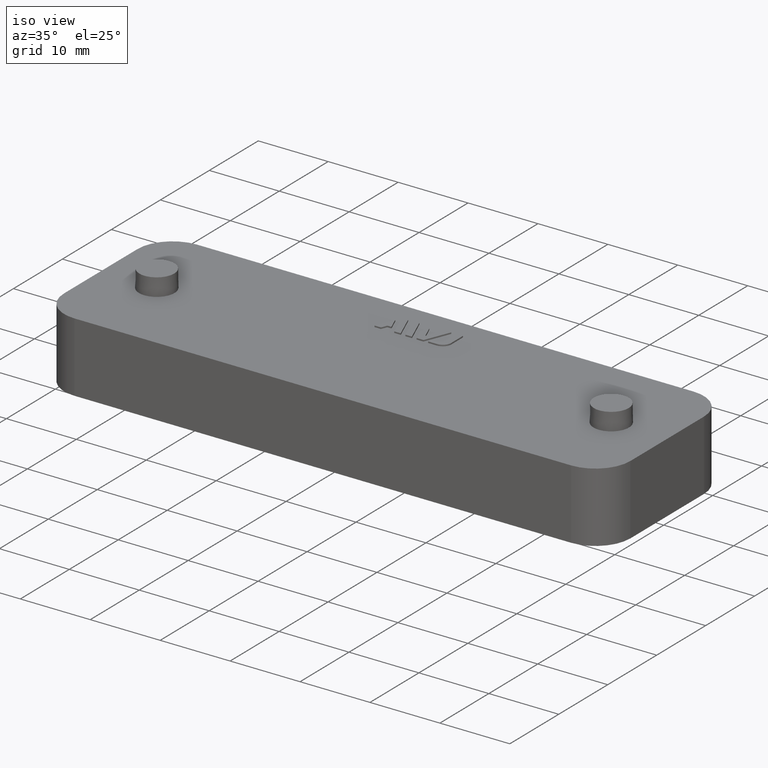
[diagram: clean part render]
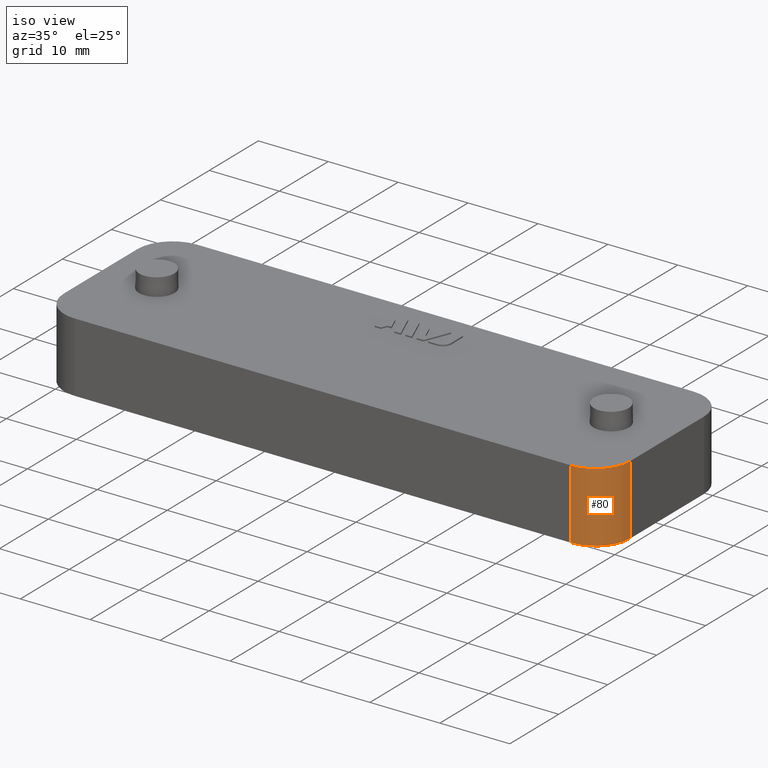
[diagram: same view with one face highlighted and labeled with its STEP entity id]
A machine part, iso view. The second image highlights one B-rep face of the part: STEP entity #80.
In plain terms, the highlighted cylindrical surface (partial cylindrical patch) has radius 5 mm, axis along (-0, 0, 1).
Its self-contained STEP definition (entity closure, byte-faithful):
#80 = ADVANCED_FACE( '', ( #527 ), #528, .T. );
#527 = FACE_OUTER_BOUND( '', #1463, .T. );
#528 = CYLINDRICAL_SURFACE( '', #1464, 5.00000000000000 );
#1463 = EDGE_LOOP( '', ( #2451, #2452, #2453, #2454 ) );
#1464 = AXIS2_PLACEMENT_3D( '', #2455, #2456, #2457 );
#2451 = ORIENTED_EDGE( '', *, *, #5925, .F. );
#2452 = ORIENTED_EDGE( '', *, *, #5924, .F. );
#2453 = ORIENTED_EDGE( '', *, *, #5893, .T. );
#2454 = ORIENTED_EDGE( '', *, *, #5914, .T. );
#2455 = CARTESIAN_POINT( '', ( 35.5000000000000, -7.49999999999989, 88.7139788967795 ) );
#2456 = DIRECTION( '', ( -1.60751816480227E-016, 1.81794180051289E-016, 1.00000000000000 ) );
#2457 = DIRECTION( '', ( 1.00000000000000, -2.77555756156289E-015, 1.60751816480227E-016 ) );
#5893 = EDGE_CURVE( '', #7007, #7005, #7008, .T. );
#5914 = EDGE_CURVE( '', #7005, #7048, #7049, .T. );
#5924 = EDGE_CURVE( '', #7007, #7062, #7065, .T. );
#5925 = EDGE_CURVE( '', #7062, #7048, #7066, .T. );
#7005 = VERTEX_POINT( '', #8846 );
#7007 = VERTEX_POINT( '', #8849 );
#7008 = CIRCLE( '', #8850, 5.00000000000000 );
#7048 = VERTEX_POINT( '', #8906 );
#7049 = LINE( '', #8907, #8908 );
#7062 = VERTEX_POINT( '', #8928 );
#7065 = LINE( '', #8933, #8934 );
#7066 = CIRCLE( '', #8935, 5.00000000000000 );
#8846 = CARTESIAN_POINT( '', ( 35.5000000000000, -12.5000000000000, 9.99999999999998 ) );
#8849 = CARTESIAN_POINT( '', ( 40.5000000000000, -7.49999999999992, 9.99999999999998 ) );
#8850 = AXIS2_PLACEMENT_3D( '', #11731, #11732, #11733 );
#8906 = CARTESIAN_POINT( '', ( 35.5000000000000, -12.4999999999999, 1.46431667789534E-014 ) );
#8907 = CARTESIAN_POINT( '', ( 35.5000000000000, -12.4999999999999, 88.7139788967795 ) );
#8908 = VECTOR( '', #11762, 1000.00000000000 );
#8928 = CARTESIAN_POINT( '', ( 40.5000000000000, -7.49999999999992, -1.34185604251311E-014 ) );
#8933 = CARTESIAN_POINT( '', ( 40.5000000000000, -7.49999999999989, 88.7139788967795 ) );
#8934 = VECTOR( '', #11772, 1000.00000000000 );
#8935 = AXIS2_PLACEMENT_3D( '', #11773, #11774, #11775 );
#11731 = CARTESIAN_POINT( '', ( 35.5000000000000, -7.49999999999990, 9.99999999999998 ) );
#11732 = DIRECTION( '', ( 0.000000000000000, -6.12303176911189E-017, -1.00000000000000 ) );
#11733 = DIRECTION( '', ( 0.000000000000000, 1.00000000000000, -6.12303176911189E-017 ) );
#11762 = DIRECTION( '', ( 1.60751816480227E-016, -1.81794180051289E-016, -1.00000000000000 ) );
#11772 = DIRECTION( '', ( 1.60751816480227E-016, -1.81794180051289E-016, -1.00000000000000 ) );
#11773 = CARTESIAN_POINT( '', ( 35.5000000000000, -7.49999999999991, -1.34185604251311E-014 ) );
#11774 = DIRECTION( '', ( 0.000000000000000, -6.12303176911189E-017, -1.00000000000000 ) );
#11775 = DIRECTION( '', ( 0.000000000000000, 1.00000000000000, -6.12303176911189E-017 ) );